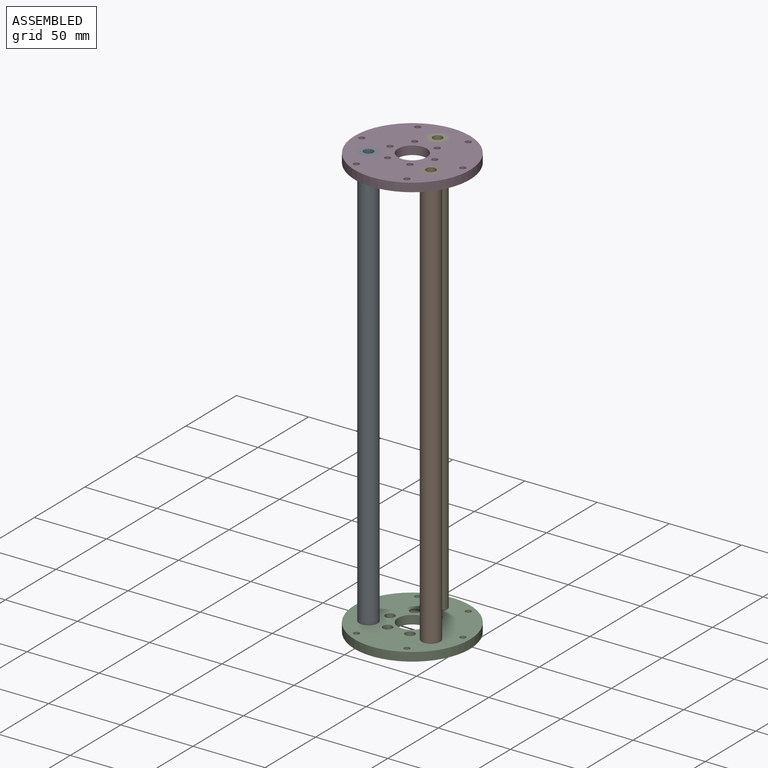
[diagram: assembled view]
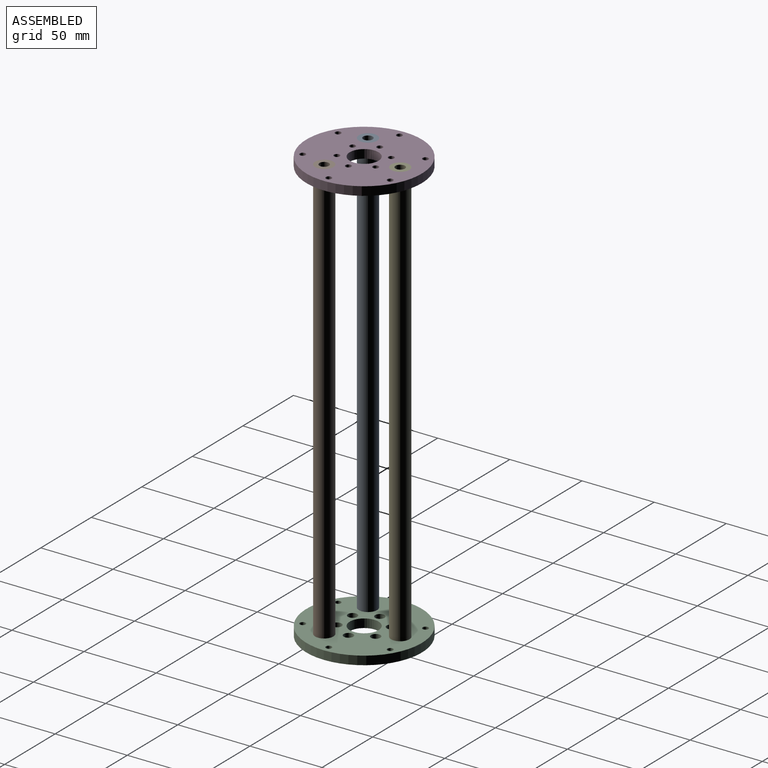
[diagram: assembled view, second angle]
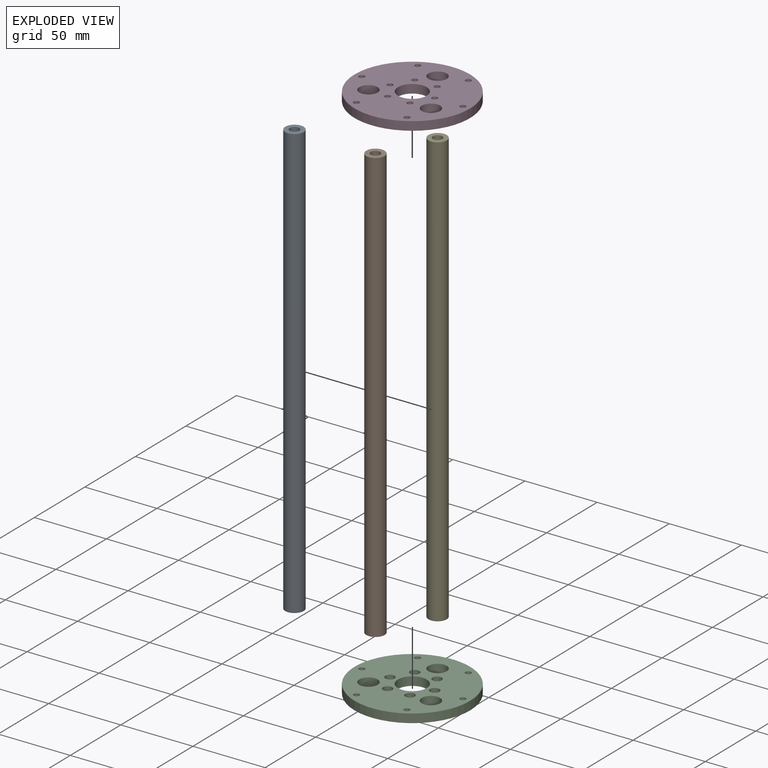
[diagram: exploded view]
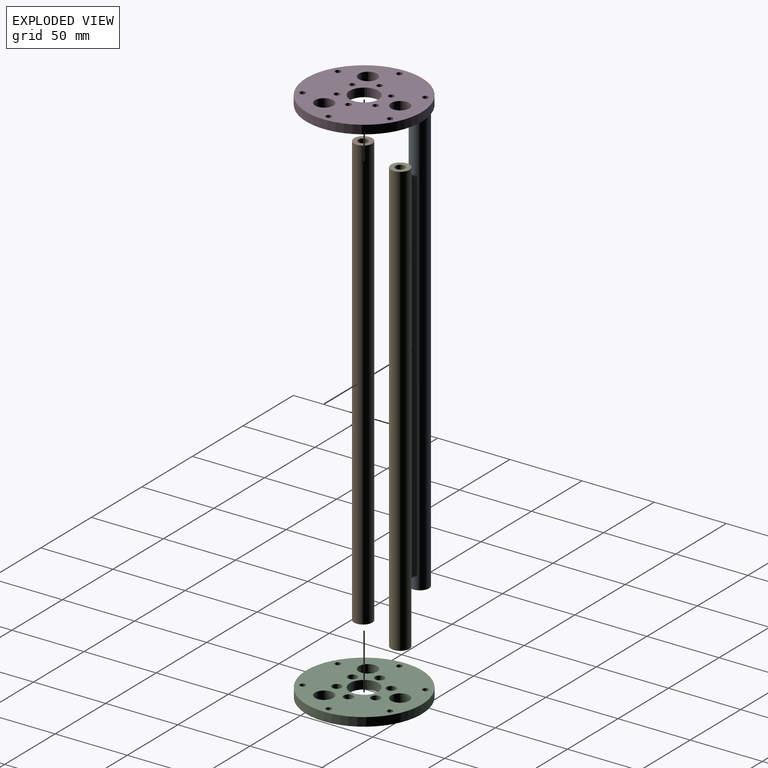
[diagram: exploded view, second angle]
ASSEMBLY  parts=5 mates=2
PART A: 4 faces, bbox 12.7x12.7x300 mm
  f0: cylinder r=6.35mm len=300mm, axis (0,0,1), area 11969.5mm2, adj f1,f2
  f1: plane 12.7x12.7mm, normal (0,0,-1), area 92.5mm2, adj f0,f3
  f2: plane 12.7x12.7mm, normal (0,0,1), area 92.5mm2, adj f0,f3
  f3: cylinder r=3.3mm len=300mm, axis (0,0,1), area 6220.4mm2, adj f1,f2
PART B: same geometry as A
PART C: 31 faces, bbox 80x80x6 mm
  f0: cylinder r=2mm len=4mm, axis (0,0,1), area 37.7mm2, adj f7,f26
  f1: cylinder r=2mm len=4mm, axis (0,0,1), area 37.7mm2, adj f7,f24
  f2: cylinder r=2mm len=4mm, axis (0,0,1), area 37.7mm2, adj f7,f22
  f3: cylinder r=2mm len=4mm, axis (0,0,1), area 37.7mm2, adj f7,f20
  f4: cylinder r=2mm len=4mm, axis (0,0,1), area 37.7mm2, adj f7,f18
  f5: cylinder r=2mm len=4mm, axis (0,0,1), area 37.7mm2, adj f7,f16
  f6: cylinder r=40mm len=80mm, axis (0,0,1), area 1508mm2, adj f7,f15
  f7: plane 80x80mm, normal (0,0,-1), area 4181.6mm2, adj f0,f1,f2,f3,f4,f5,f6,f8
  f8: cylinder r=2mm len=6mm, axis (0,0,1), area 75.4mm2, adj f7,f15
  f9: cylinder r=2mm len=6mm, axis (0,0,1), area 75.4mm2, adj f7,f15
  f10: cylinder r=2mm len=6mm, axis (0,0,1), area 75.4mm2, adj f7,f15
  f11: cylinder r=2mm len=6mm, axis (0,0,1), area 75.4mm2, adj f7,f15
  f12: cylinder r=2mm len=6mm, axis (0,0,1), area 75.4mm2, adj f7,f15
  f13: cylinder r=2mm len=6mm, axis (0,0,1), area 75.4mm2, adj f7,f15
  f14: cylinder r=10mm len=20mm, axis (0,0,1), area 377mm2, adj f7,f15
  f15: plane 80x80mm, normal (0,0,1), area 4057.9mm2, adj f6,f8,f9,f10,f11,f12,f13,f14
  f16: plane 6.5x6.5mm, normal (0,0,1), area 20.6mm2, adj f5,f17
  f17: cylinder r=3.25mm len=6.5mm, axis (0,0,1), area 61.3mm2, adj f15,f16
  f18: plane 6.5x6.5mm, normal (0,0,1), area 20.6mm2, adj f4,f19
  f19: cylinder r=3.25mm len=6.5mm, axis (0,0,1), area 61.3mm2, adj f15,f18
  f20: plane 6.5x6.5mm, normal (0,0,1), area 20.6mm2, adj f3,f21
  f21: cylinder r=3.25mm len=6.5mm, axis (0,0,1), area 61.3mm2, adj f15,f20
  f22: plane 6.5x6.5mm, normal (0,0,1), area 20.6mm2, adj f2,f23
  f23: cylinder r=3.25mm len=6.5mm, axis (0,0,1), area 61.3mm2, adj f15,f22
  f24: plane 6.5x6.5mm, normal (0,0,1), area 20.6mm2, adj f1,f25
  f25: cylinder r=3.25mm len=6.5mm, axis (0,0,1), area 61.3mm2, adj f15,f24
  f26: plane 6.5x6.5mm, normal (0,0,1), area 20.6mm2, adj f0,f27
  f27: cylinder r=3.25mm len=6.5mm, axis (0,0,1), area 61.3mm2, adj f15,f26
  f28: cylinder r=6.35mm len=12.7mm, axis (0,0,1), area 239.4mm2, adj f7,f15
  f29: cylinder r=6.35mm len=12.7mm, axis (0,0,1), area 239.4mm2, adj f7,f15
  f30: cylinder r=6.35mm len=12.7mm, axis (0,0,1), area 239.4mm2, adj f7,f15
PART D: same geometry as C
PART E: same geometry as A
PLACE A rot(axis=(0,0,-1),120deg) t=(45.56,58.68,-132.93)mm
PLACE B t=(88.86,58.68,-132.93)mm
PLACE C t=(-32.79,71.18,-131.93)mm
PLACE D rot(axis=(0,1,0),180deg) t=(167.21,71.18,166.07)mm
PLACE E rot(axis=(0,0,1),120deg) t=(67.21,96.18,-132.93)mm
MATE fastened B.f0 <-> D.f30  axis (0,0,1) through (88.86,58.68,167.07)mm
MATE fastened C.f29 <-> B.f0  axis (0,0,-1) through (88.86,58.68,-132.93)mm
